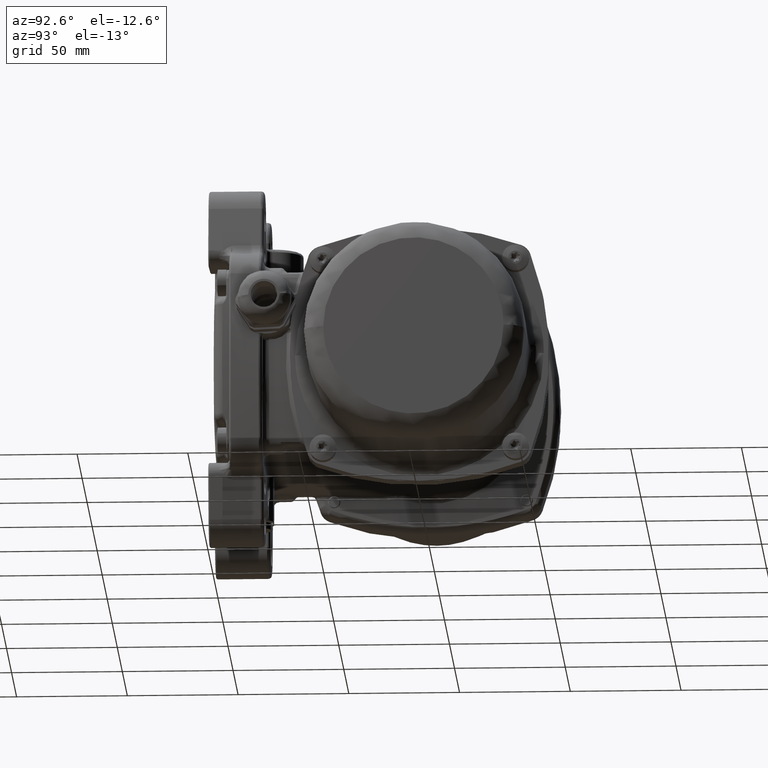
[diagram: clean part render]
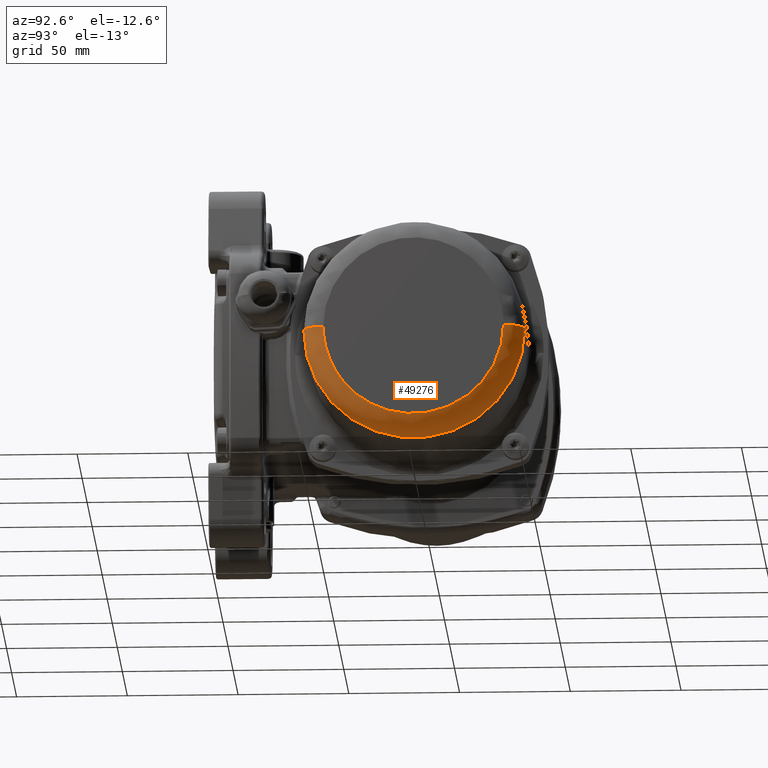
[diagram: same view with one face highlighted and labeled with its STEP entity id]
A machine part, auxiliary view. The second image highlights one B-rep face of the part: STEP entity #49276.
In plain terms, the highlighted face is a freeform B-spline surface patch.
Its self-contained STEP definition (entity closure, byte-faithful):
#1231 = FACE_OUTER_BOUND ( 'NONE', #15004, .T. ) ;
#1922 = DIRECTION ( 'NONE',  ( 1.281898970984143800E-030, -3.120029309989154900E-019, -1.000000000000000000 ) ) ;
#4558 = CARTESIAN_POINT ( 'NONE',  ( 111.2999999999999300, 136.6999999999999900, -1.834599836415756900E-013 ) ) ;
#5302 = CARTESIAN_POINT ( 'NONE',  ( 111.2999999999999400, 145.9000000000002000, -99.80000000000019600 ) ) ;
#6817 = CARTESIAN_POINT ( 'NONE',  ( 120.4999999999999100, 136.7000000000001300, -81.40000000000020500 ) ) ;
#9010 = CARTESIAN_POINT ( 'NONE',  ( 120.5000000000000000, 55.30000000000000400, -1.784502741304629800E-013 ) ) ;
#15004 = EDGE_LOOP ( 'NONE', ( #65804, #79873, #83607, #98902 ) ) ;
#15295 = CARTESIAN_POINT ( 'NONE',  ( 111.3000000000000000, 55.30000000000000400, -1.784502741304629800E-013 ) ) ;
#17161 = CARTESIAN_POINT ( 'NONE',  ( 111.3000000000000400, 46.10000000000000100, -1.784474037034976300E-013 ) ) ;
#17659 = CARTESIAN_POINT ( 'NONE',  ( 120.4999999999999000, 142.0892352261675200, -8.178299579480803600E-014 ) ) ;
#18082 =( BOUNDED_SURFACE ( )  B_SPLINE_SURFACE ( 3, 3, ( 
 ( #123608, #77504, #6817, #101817 ),
 ( #53274, #42437, #41930, #17659 ),
 ( #112696, #100309, #147356, #29537 ),
 ( #17161, #40389, #5302, #76483 ) ),
 .UNSPECIFIED., .F., .F., .F. ) 
 B_SPLINE_SURFACE_WITH_KNOTS ( ( 4, 4 ),
 ( 4, 4 ),
 ( 0.0000000000000000000, 1.000000000000000000 ),
 ( 0.0000000000000000000, 1.000000000000000000 ),
 .UNSPECIFIED. ) 
 GEOMETRIC_REPRESENTATION_ITEM ( )  RATIONAL_B_SPLINE_SURFACE ( (
 ( 1.000000000000000000, 0.3333333333333326500, 0.3333333333333326500, 1.000000000000000000),
 ( 0.8047378541243658300, 0.2682459513747880700, 0.2682459513747880700, 0.8047378541243658300),
 ( 0.8047378541243658300, 0.2682459513747880700, 0.2682459513747880700, 0.8047378541243658300),
 ( 1.000000000000000000, 0.3333333333333326500, 0.3333333333333326500, 1.000000000000000000) ) ) 
 REPRESENTATION_ITEM ( '' )  SURFACE ( )  );
#21585 = AXIS2_PLACEMENT_3D ( 'NONE', #4558, #133734, #27293 ) ;
#22154 = CIRCLE ( 'NONE', #48682, 9.199999999999999300 ) ;
#27293 = DIRECTION ( 'NONE',  ( -1.508455196501573800E-015, 1.000000000000000000, -1.227766828457355000E-016 ) ) ;
#28825 = CARTESIAN_POINT ( 'NONE',  ( 120.5000000000000000, 55.30000000000000400, -1.784502741304629800E-013 ) ) ;
#29537 = CARTESIAN_POINT ( 'NONE',  ( 116.6892352261674400, 145.8999999999999800, -7.378927126616602900E-014 ) ) ;
#29747 = EDGE_CURVE ( 'NONE', #147183, #35913, #115491, .T. ) ;
#31516 = CARTESIAN_POINT ( 'NONE',  ( 111.2999999999999500, 145.9000000000000100, -1.845895291237566300E-013 ) ) ;
#34294 = CARTESIAN_POINT ( 'NONE',  ( 111.3000000000000400, 46.10000000000000100, -1.784474037034976300E-013 ) ) ;
#35913 = VERTEX_POINT ( 'NONE', #34294 ) ;
#40389 = CARTESIAN_POINT ( 'NONE',  ( 111.3000000000000400, 46.10000000000000900, -99.80000000000036700 ) ) ;
#41930 = CARTESIAN_POINT ( 'NONE',  ( 120.4999999999999300, 142.0892352261677200, -92.17847045233524700 ) ) ;
#42437 = CARTESIAN_POINT ( 'NONE',  ( 120.5000000000000100, 49.91076477383249700, -92.17847045233540400 ) ) ;
#43001 = DIRECTION ( 'NONE',  ( -1.000000000000000000, -8.164311994315690300E-016, 2.547289271816049700E-034 ) ) ;
#43485 = VERTEX_POINT ( 'NONE', #116590 ) ;
#48682 = AXIS2_PLACEMENT_3D ( 'NONE', #15295, #1922, #61206 ) ;
#49276 = ADVANCED_FACE ( 'NONE', ( #1231 ), #18082, .T. ) ;
#53274 = CARTESIAN_POINT ( 'NONE',  ( 120.4999999999999900, 49.91076477383249700, -1.784485926732764600E-013 ) ) ;
#61206 = DIRECTION ( 'NONE',  ( 1.508455196501571400E-015, -1.000000000000000000, 3.120029309997149500E-019 ) ) ;
#65804 = ORIENTED_EDGE ( 'NONE', *, *, #143050, .F. ) ;
#69831 = CARTESIAN_POINT ( 'NONE',  ( 120.4999999999999400, 136.7000000000001600, -81.40000000000026100 ) ) ;
#75647 =( BOUNDED_CURVE ( )  B_SPLINE_CURVE ( 3, ( #127330, #69831, #93633, #9010 ),
 .UNSPECIFIED., .F., .F. ) 
 B_SPLINE_CURVE_WITH_KNOTS ( ( 4, 4 ),
 ( 0.0000000000000000000, 1.000000000000000000 ),
 .UNSPECIFIED. ) 
 CURVE ( )  GEOMETRIC_REPRESENTATION_ITEM ( )  RATIONAL_B_SPLINE_CURVE ( ( 1.000000000000000000, 0.3333333333333327600, 0.3333333333333327600, 1.000000000000000000 ) ) 
 REPRESENTATION_ITEM ( '' )  );
#76483 = CARTESIAN_POINT ( 'NONE',  ( 111.2999999999999400, 145.8999999999999800, -7.378927126616599100E-014 ) ) ;
#77504 = CARTESIAN_POINT ( 'NONE',  ( 120.4999999999999900, 55.30000000000000400, -81.40000000000036100 ) ) ;
#79873 = ORIENTED_EDGE ( 'NONE', *, *, #86935, .T. ) ;
#83607 = ORIENTED_EDGE ( 'NONE', *, *, #147859, .T. ) ;
#85377 = CARTESIAN_POINT ( 'NONE',  ( 111.3000000000000000, 96.00000000000000000, -1.784629726497544600E-013 ) ) ;
#86317 = VERTEX_POINT ( 'NONE', #28825 ) ;
#86935 = EDGE_CURVE ( 'NONE', #43485, #86317, #75647, .T. ) ;
#92433 = AXIS2_PLACEMENT_3D ( 'NONE', #85377, #43001, #129772 ) ;
#93633 = CARTESIAN_POINT ( 'NONE',  ( 120.4999999999999900, 55.30000000000001800, -81.40000000000033300 ) ) ;
#98902 = ORIENTED_EDGE ( 'NONE', *, *, #29747, .F. ) ;
#100309 = CARTESIAN_POINT ( 'NONE',  ( 116.6892352261675400, 46.10000000000002300, -99.80000000000032400 ) ) ;
#101817 = CARTESIAN_POINT ( 'NONE',  ( 120.4999999999999300, 136.6999999999999900, -9.308782943708807800E-014 ) ) ;
#112696 = CARTESIAN_POINT ( 'NONE',  ( 116.6892352261675400, 46.10000000000002300, -1.784474037034976300E-013 ) ) ;
#115491 = CIRCLE ( 'NONE', #92433, 49.89999999999999900 ) ;
#116590 = CARTESIAN_POINT ( 'NONE',  ( 120.5000000000000000, 136.6999999999999900, -1.836853186526189700E-013 ) ) ;
#117458 = CIRCLE ( 'NONE', #21585, 9.199999999999985100 ) ;
#123608 = CARTESIAN_POINT ( 'NONE',  ( 120.5000000000000000, 55.30000000000001100, -1.784502741304628500E-013 ) ) ;
#127330 = CARTESIAN_POINT ( 'NONE',  ( 120.5000000000000000, 136.6999999999999900, -1.836853186526189700E-013 ) ) ;
#129772 = DIRECTION ( 'NONE',  ( 8.343359403495665600E-016, -1.000000000000000000, 3.120029309988288700E-019 ) ) ;
#133734 = DIRECTION ( 'NONE',  ( 1.181914985473353400E-030, 1.227766828457342400E-016, 1.000000000000000000 ) ) ;
#143050 = EDGE_CURVE ( 'NONE', #43485, #147183, #117458, .T. ) ;
#147183 = VERTEX_POINT ( 'NONE', #31516 ) ;
#147356 = CARTESIAN_POINT ( 'NONE',  ( 116.6892352261674400, 145.9000000000002000, -99.80000000000021000 ) ) ;
#147859 = EDGE_CURVE ( 'NONE', #86317, #35913, #22154, .T. ) ;